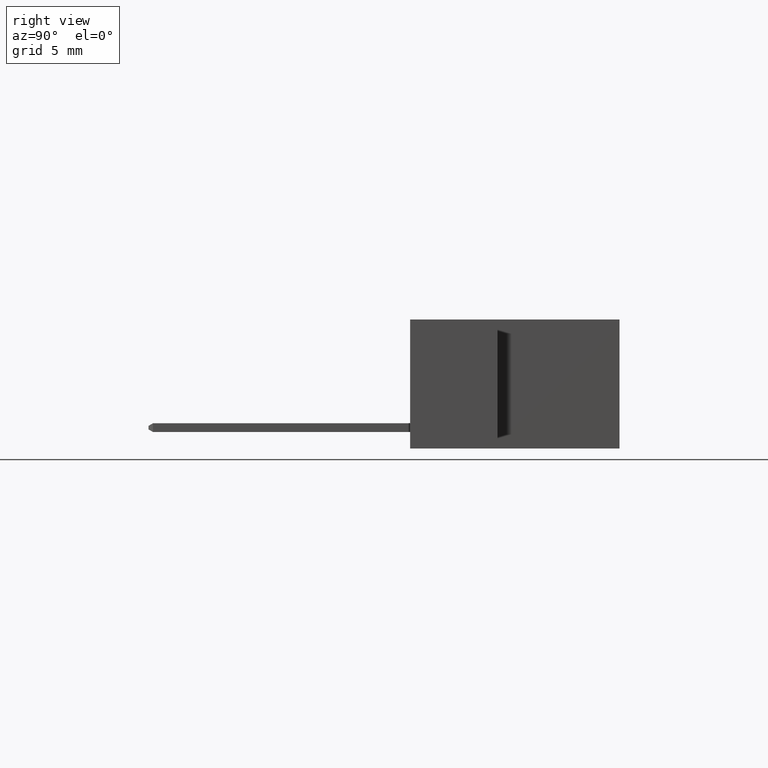
[diagram: clean part render]
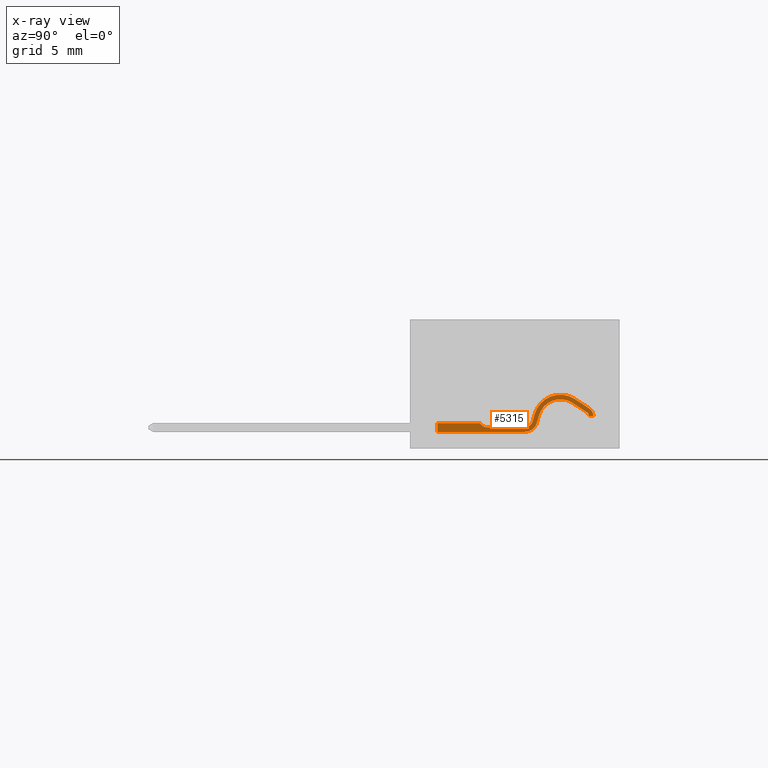
[diagram: x-ray — body ghosted, one internal face saturated and labeled with its STEP entity id]
A machine part, right view, then the same camera in x-ray: the body is ghosted and one INTERNAL B-rep face — a face not visible from any outside direction — is saturated and labeled: STEP entity #5315.
In plain terms, the highlighted planar face has unit normal (-1, 0, 0).
Its self-contained STEP definition (entity closure, byte-faithful):
#42 = CARTESIAN_POINT ( 'NONE',  ( 0.2280000000028442053, 0.04250000000038788028, -0.02499999999915982624 ) ) ;
#108 = DIRECTION ( 'NONE',  ( 8.902623563303279336E-13, 1.656501484547461310E-14, 1.000000000000000000 ) ) ;
#121 = ORIENTED_EDGE ( 'NONE', *, *, #7927, .F. ) ;
#165 = EDGE_CURVE ( 'NONE', #3903, #5911, #7011, .T. ) ;
#294 = VECTOR ( 'NONE', #8243, 39.37007874015748854 ) ;
#300 = DIRECTION ( 'NONE',  ( 8.902623563303279336E-13, 1.656501484547461310E-14, 1.000000000000000000 ) ) ;
#324 = CARTESIAN_POINT ( 'NONE',  ( 0.4582132034402469634, 0.03750000000033087283, -0.02500000000022688587 ) ) ;
#515 = ORIENTED_EDGE ( 'NONE', *, *, #4002, .T. ) ;
#556 = CIRCLE ( 'NONE', #2676, 0.02650000000033553293 ) ;
#574 = DIRECTION ( 'NONE',  ( 1.000000000000000000, -1.732834432129456299E-13, 8.902119027113696962E-13 ) ) ;
#623 = VERTEX_POINT ( 'NONE', #6343 ) ;
#790 = VECTOR ( 'NONE', #1511, 39.37007874015748143 ) ;
#829 = CIRCLE ( 'NONE', #1535, 0.06350000000080403828 ) ;
#835 = CARTESIAN_POINT ( 'NONE',  ( 0.3300000000039906567, 0.02550000000034289074, -0.02500000000042276044 ) ) ;
#846 = CARTESIAN_POINT ( 'NONE',  ( 0.1597132034367107212, 0.05750000000034401204, -0.02500000000185493079 ) ) ;
#861 = VERTEX_POINT ( 'NONE', #1206 ) ;
#892 = CARTESIAN_POINT ( 'NONE',  ( 0.4372132034402697598, 0.04722792206173969526, -0.02500000000001680739 ) ) ;
#934 = DIRECTION ( 'NONE',  ( -1.000000000000000000, 1.730839966552133206E-13, -8.902498925318919392E-13 ) ) ;
#982 = LINE ( 'NONE', #5580, #1743 ) ;
#1155 = DIRECTION ( 'NONE',  ( -8.902623563187173147E-13, 1.656501484578285892E-14, 1.000000000000000000 ) ) ;
#1166 = VERTEX_POINT ( 'NONE', #6920 ) ;
#1173 = EDGE_CURVE ( 'NONE', #1166, #7763, #3504, .T. ) ;
#1174 = ORIENTED_EDGE ( 'NONE', *, *, #4811, .F. ) ;
#1202 = LINE ( 'NONE', #6537, #2614 ) ;
#1206 = CARTESIAN_POINT ( 'NONE',  ( 0.4525771644709351560, 0.03186396103094470827, -0.02500000000036689540 ) ) ;
#1320 = CARTESIAN_POINT ( 'NONE',  ( 0.1597132034367107212, 0.05750000000034401204, -0.02500000000185493079 ) ) ;
#1468 = VERTEX_POINT ( 'NONE', #7320 ) ;
#1470 = EDGE_CURVE ( 'NONE', #623, #1166, #3954, .T. ) ;
#1499 = ORIENTED_EDGE ( 'NONE', *, *, #1173, .T. ) ;
#1502 = EDGE_CURVE ( 'NONE', #4264, #6078, #6624, .T. ) ;
#1511 = DIRECTION ( 'NONE',  ( 0.8361232374584944838, 0.5485416408823728940, 7.534556439755348653E-13 ) ) ;
#1530 = ORIENTED_EDGE ( 'NONE', *, *, #7880, .F. ) ;
#1531 = VECTOR ( 'NONE', #6120, 39.37007874015748854 ) ;
#1535 = AXIS2_PLACEMENT_3D ( 'NONE', #42, #2759, #5336 ) ;
#1540 = ORIENTED_EDGE ( 'NONE', *, *, #6777, .T. ) ;
#1610 = DIRECTION ( 'NONE',  ( -1.000000000000000000, 1.729955628041432475E-13, -8.902667370749531988E-13 ) ) ;
#1653 = DIRECTION ( 'NONE',  ( -1.000000000000000000, 1.731179353312413288E-13, -8.902623563187200410E-13 ) ) ;
#1743 = VECTOR ( 'NONE', #1653, 39.37007874015748143 ) ;
#1754 = EDGE_CURVE ( 'NONE', #8474, #4264, #6185, .T. ) ;
#1786 = CIRCLE ( 'NONE', #7343, 0.02172792206163290385 ) ;
#1833 = FACE_OUTER_BOUND ( 'NONE', #5057, .T. ) ;
#1874 = VECTOR ( 'NONE', #3223, 39.37007874015748143 ) ;
#1952 = PLANE ( 'NONE',  #6706 ) ;
#2009 = LINE ( 'NONE', #2496, #6727 ) ;
#2306 = VECTOR ( 'NONE', #5938, 39.37007874015748143 ) ;
#2321 = CARTESIAN_POINT ( 'NONE',  ( 0.2280000000028442053, 0.04250000000038788028, -0.02499999999915982624 ) ) ;
#2388 = ORIENTED_EDGE ( 'NONE', *, *, #4864, .T. ) ;
#2446 = AXIS2_PLACEMENT_3D ( 'NONE', #7169, #8588, #574 ) ;
#2458 = CARTESIAN_POINT ( 'NONE',  ( 0.3300000000036552028, 0.04900000000022880497, -0.02500000000038929415 ) ) ;
#2496 = CARTESIAN_POINT ( 'NONE',  ( 0.2891684392902123535, 0.05954910658307530774, -0.02500000000164225716 ) ) ;
#2534 = CARTESIAN_POINT ( 'NONE',  ( 0.4582132034402469634, 0.03750000000033087283, -0.02500000000022688587 ) ) ;
#2614 = VECTOR ( 'NONE', #5242, 39.37007874015748143 ) ;
#2615 = CARTESIAN_POINT ( 'NONE',  ( 0.3300000000039906567, 0.02550000000034289074, -0.02500000000042276044 ) ) ;
#2676 = AXIS2_PLACEMENT_3D ( 'NONE', #846, #4865, #1610 ) ;
#2753 = CARTESIAN_POINT ( 'NONE',  ( 0.1451768499532067047, 0.07965726579327719881, -0.02500000000171178141 ) ) ;
#2759 = DIRECTION ( 'NONE',  ( -8.902623563303279336E-13, -1.656501484547461310E-14, -1.000000000000000000 ) ) ;
#2780 = VERTEX_POINT ( 'NONE', #7035 ) ;
#2900 = LINE ( 'NONE', #8152, #790 ) ;
#2935 = ORIENTED_EDGE ( 'NONE', *, *, #2947, .T. ) ;
#2947 = EDGE_CURVE ( 'NONE', #3903, #8343, #982, .T. ) ;
#3223 = DIRECTION ( 'NONE',  ( 1.000000000000000000, -1.727596155424487413E-13, 8.902623563186900517E-13 ) ) ;
#3332 = ORIENTED_EDGE ( 'NONE', *, *, #8035, .T. ) ;
#3373 = EDGE_CURVE ( 'NONE', #7759, #2780, #829, .T. ) ;
#3385 = LINE ( 'NONE', #3420, #1531 ) ;
#3420 = CARTESIAN_POINT ( 'NONE',  ( 0.3016911119005369901, 0.06303947485990082922, -0.02499999999958517696 ) ) ;
#3495 = CARTESIAN_POINT ( 'NONE',  ( 0.5802132034426116247, 0.03750000000015852458, -0.02500000000157559868 ) ) ;
#3504 = CIRCLE ( 'NONE', #7295, 0.07650000000096864039 ) ;
#3744 = ORIENTED_EDGE ( 'NONE', *, *, #1470, .T. ) ;
#3787 = CARTESIAN_POINT ( 'NONE',  ( 0.2948401884454195931, 0.03920011983863935789, -0.02499999999952985663 ) ) ;
#3791 = CIRCLE ( 'NONE', #5193, 0.03650000000046216969 ) ;
#3903 = VERTEX_POINT ( 'NONE', #7956 ) ;
#3954 = LINE ( 'NONE', #2753, #2306 ) ;
#3971 = DIRECTION ( 'NONE',  ( -8.902623563303279336E-13, -1.656501484547461310E-14, -1.000000000000000000 ) ) ;
#4002 = EDGE_CURVE ( 'NONE', #8343, #623, #556, .T. ) ;
#4163 = LINE ( 'NONE', #3495, #6224 ) ;
#4206 = VECTOR ( 'NONE', #4612, 39.37007874015748143 ) ;
#4264 = VERTEX_POINT ( 'NONE', #835 ) ;
#4386 = EDGE_CURVE ( 'NONE', #861, #1468, #5663, .T. ) ;
#4612 = DIRECTION ( 'NONE',  ( 1.000000000000000000, -1.731179353312349675E-13, 8.902273685114248646E-13 ) ) ;
#4614 = CARTESIAN_POINT ( 'NONE',  ( 0.5802132034426116247, 0.03750000000015852458, -0.02500000000157559868 ) ) ;
#4805 = VERTEX_POINT ( 'NONE', #3787 ) ;
#4809 = CARTESIAN_POINT ( 'NONE',  ( 0.1332179208374873469, 0.05800000000065564515, -0.02499999999995561328 ) ) ;
#4811 = EDGE_CURVE ( 'NONE', #4805, #5194, #3791, .T. ) ;
#4830 = EDGE_CURVE ( 'NONE', #2780, #4805, #2009, .T. ) ;
#4861 = DIRECTION ( 'NONE',  ( 1.731179353312995404E-13, -1.000000000000000000, -1.656501484509038419E-14 ) ) ;
#4864 = EDGE_CURVE ( 'NONE', #1468, #6254, #5897, .T. ) ;
#4865 = DIRECTION ( 'NONE',  ( -8.902623563303279336E-13, -1.656501484547461310E-14, -1.000000000000000000 ) ) ;
#5057 = EDGE_LOOP ( 'NONE', ( #7679, #2935, #515, #3744, #1499, #1540, #7321, #5383, #3332, #7384, #2388, #7162, #1530, #1174, #7879, #5522, #121 ) ) ;
#5094 = CARTESIAN_POINT ( 'NONE',  ( 0.3300000000036691916, 0.01250000000015223482, -0.02500000000022879754 ) ) ;
#5107 = DIRECTION ( 'NONE',  ( 1.000000000000000000, -1.730794105553045593E-13, 8.903064544307659309E-13 ) ) ;
#5193 = AXIS2_PLACEMENT_3D ( 'NONE', #2458, #300, #5107 ) ;
#5194 = VERTEX_POINT ( 'NONE', #5094 ) ;
#5242 = DIRECTION ( 'NONE',  ( 1.000000000000000000, -1.727596155424487413E-13, 8.902623563186900517E-13 ) ) ;
#5315 = ADVANCED_FACE ( 'NONE', ( #1833 ), #1952, .F. ) ;
#5336 = DIRECTION ( 'NONE',  ( -1.000000000000000000, 1.731604436906997177E-13, -8.902705420184887468E-13 ) ) ;
#5383 = ORIENTED_EDGE ( 'NONE', *, *, #1502, .T. ) ;
#5438 = DIRECTION ( 'NONE',  ( 1.000000000000000000, -1.732714249245437176E-13, 8.903243738753198090E-13 ) ) ;
#5522 = ORIENTED_EDGE ( 'NONE', *, *, #3373, .F. ) ;
#5580 = CARTESIAN_POINT ( 'NONE',  ( 0.1332132034364709727, 0.05800000000065359818, -0.02499999999935078113 ) ) ;
#5663 = LINE ( 'NONE', #324, #294 ) ;
#5809 = CARTESIAN_POINT ( 'NONE',  ( 0.3016911119005369901, 0.06303947485990082922, -0.02499999999958517696 ) ) ;
#5897 = LINE ( 'NONE', #2534, #4206 ) ;
#5911 = VERTEX_POINT ( 'NONE', #7548 ) ;
#5938 = DIRECTION ( 'NONE',  ( 0.8361232374584944838, 0.5485416408823728940, 7.534556439755348653E-13 ) ) ;
#6078 = VERTEX_POINT ( 'NONE', #7678 ) ;
#6120 = DIRECTION ( 'NONE',  ( 0.2684898674427182441, -0.9632825084473357613, 2.230696329851775806E-13 ) ) ;
#6185 = CIRCLE ( 'NONE', #2446, 0.02350000000029760228 ) ;
#6224 = VECTOR ( 'NONE', #4861, 39.37007874015748143 ) ;
#6254 = VERTEX_POINT ( 'NONE', #4614 ) ;
#6343 = CARTESIAN_POINT ( 'NONE',  ( 0.1451768499532067047, 0.07965726579327719881, -0.02500000000171178141 ) ) ;
#6442 = DIRECTION ( 'NONE',  ( -8.902623563303279336E-13, -1.656501484547461310E-14, -1.000000000000000000 ) ) ;
#6537 = CARTESIAN_POINT ( 'NONE',  ( 0.3300000000036691916, 0.01250000000015223482, -0.02500000000022879754 ) ) ;
#6624 = LINE ( 'NONE', #2615, #1874 ) ;
#6639 = DIRECTION ( 'NONE',  ( -1.000000000000000000, 1.732699884848450245E-13, -8.903800868126341546E-13 ) ) ;
#6706 = AXIS2_PLACEMENT_3D ( 'NONE', #7135, #1155, #8553 ) ;
#6727 = VECTOR ( 'NONE', #7229, 39.37007874015748854 ) ;
#6777 = EDGE_CURVE ( 'NONE', #7763, #8474, #3385, .T. ) ;
#6920 = CARTESIAN_POINT ( 'NONE',  ( 0.1860365644733120993, 0.1064634276670733404, -0.02499999999982448554 ) ) ;
#7011 = CIRCLE ( 'NONE', #7430, 0.01350000000017093429 ) ;
#7035 = CARTESIAN_POINT ( 'NONE',  ( 0.2891684392902123535, 0.05954910658307530774, -0.02500000000164225716 ) ) ;
#7135 = CARTESIAN_POINT ( 'NONE',  ( 0.09500000000029047709, 0.02500000000019212201, -0.02499999999962396885 ) ) ;
#7162 = ORIENTED_EDGE ( 'NONE', *, *, #7980, .T. ) ;
#7169 = CARTESIAN_POINT ( 'NONE',  ( 0.3300000000036552028, 0.04900000000022880497, -0.02500000000038929415 ) ) ;
#7229 = DIRECTION ( 'NONE',  ( 0.2684898674427182441, -0.9632825084473357613, 2.230696329851775806E-13 ) ) ;
#7295 = AXIS2_PLACEMENT_3D ( 'NONE', #2321, #6442, #934 ) ;
#7320 = CARTESIAN_POINT ( 'NONE',  ( 0.4582132034402469634, 0.03750000000033087283, -0.02500000000022688587 ) ) ;
#7321 = ORIENTED_EDGE ( 'NONE', *, *, #1754, .T. ) ;
#7343 = AXIS2_PLACEMENT_3D ( 'NONE', #892, #108, #5438 ) ;
#7384 = ORIENTED_EDGE ( 'NONE', *, *, #4386, .T. ) ;
#7430 = AXIS2_PLACEMENT_3D ( 'NONE', #1320, #3971, #6639 ) ;
#7548 = CARTESIAN_POINT ( 'NONE',  ( 0.1523078912845635124, 0.06878766370630759464, -0.02500000000058038782 ) ) ;
#7678 = CARTESIAN_POINT ( 'NONE',  ( 0.4372132034405650791, 0.02550000000000803360, -0.02500000000039667020 ) ) ;
#7679 = ORIENTED_EDGE ( 'NONE', *, *, #165, .F. ) ;
#7759 = VERTEX_POINT ( 'NONE', #8257 ) ;
#7763 = VERTEX_POINT ( 'NONE', #5809 ) ;
#7768 = VERTEX_POINT ( 'NONE', #8425 ) ;
#7804 = CARTESIAN_POINT ( 'NONE',  ( 0.3073628610556551344, 0.04269048811537923260, -0.02499999999991941654 ) ) ;
#7879 = ORIENTED_EDGE ( 'NONE', *, *, #4830, .F. ) ;
#7880 = EDGE_CURVE ( 'NONE', #5194, #7768, #1202, .T. ) ;
#7927 = EDGE_CURVE ( 'NONE', #5911, #7759, #2900, .T. ) ;
#7956 = CARTESIAN_POINT ( 'NONE',  ( 0.1462224658732388660, 0.05800000000065434758, -0.02499999999926268146 ) ) ;
#7980 = EDGE_CURVE ( 'NONE', #6254, #7768, #4163, .T. ) ;
#8035 = EDGE_CURVE ( 'NONE', #6078, #861, #1786, .T. ) ;
#8152 = CARTESIAN_POINT ( 'NONE',  ( 0.1523078912845635124, 0.06878766370630759464, -0.02500000000058038782 ) ) ;
#8243 = DIRECTION ( 'NONE',  ( 0.7071067811865288100, 0.7071067811865662245, 6.412237835170670212E-13 ) ) ;
#8257 = CARTESIAN_POINT ( 'NONE',  ( 0.1931676058047338551, 0.09559382557913244371, -0.02499999999848710741 ) ) ;
#8343 = VERTEX_POINT ( 'NONE', #4809 ) ;
#8425 = CARTESIAN_POINT ( 'NONE',  ( 0.5802132034427219809, 0.01250000000022722518, -0.02500000000124408955 ) ) ;
#8474 = VERTEX_POINT ( 'NONE', #7804 ) ;
#8553 = DIRECTION ( 'NONE',  ( 1.000000000000000000, -1.731179353312413541E-13, 8.902623563187201420E-13 ) ) ;
#8588 = DIRECTION ( 'NONE',  ( 8.902623563303279336E-13, 1.656501484547461310E-14, 1.000000000000000000 ) ) ;